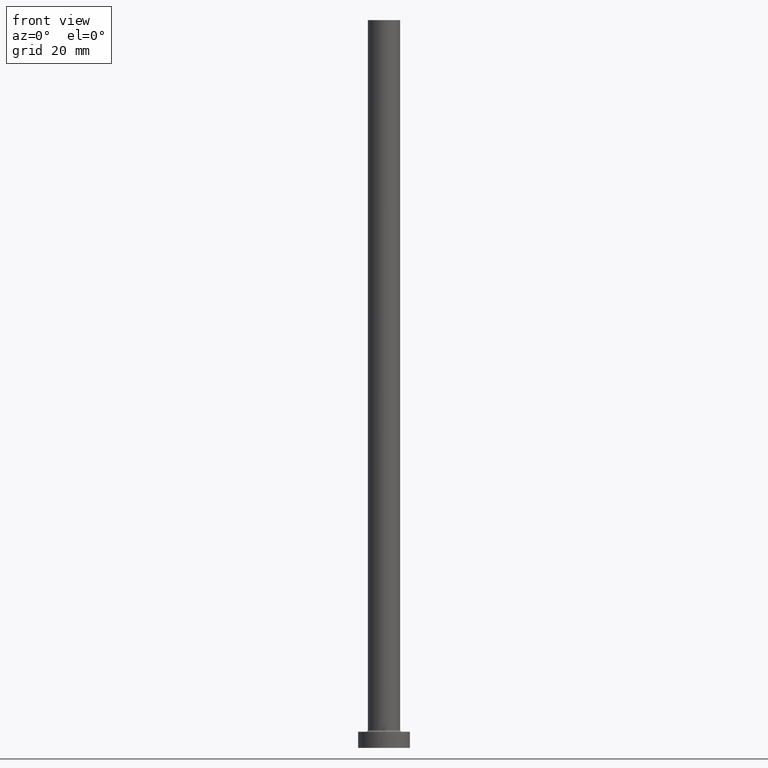
[diagram: clean part render]
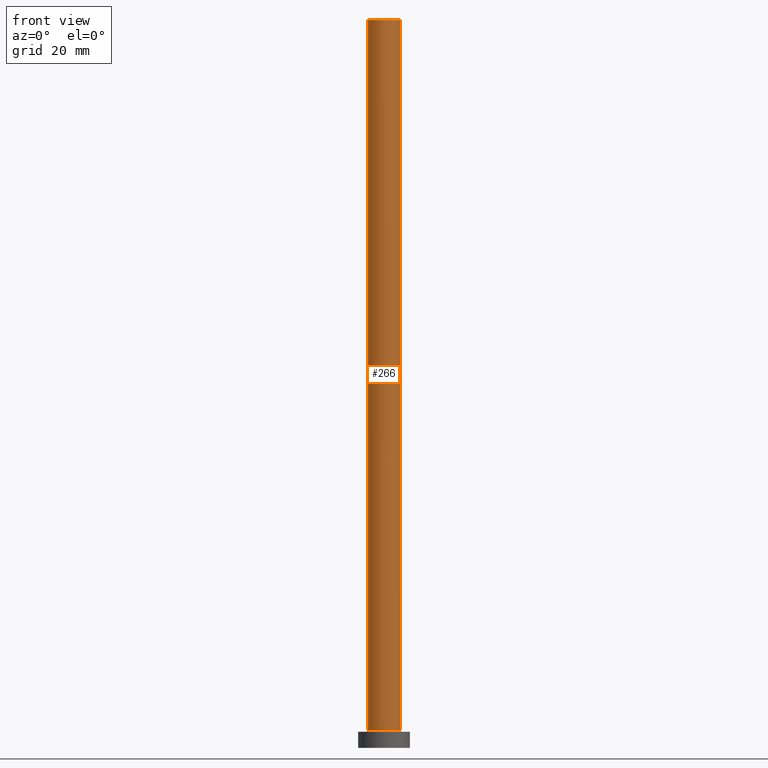
[diagram: same view with one face highlighted and labeled with its STEP entity id]
A machine part, front view. The second image highlights one B-rep face of the part: STEP entity #266.
In plain terms, the highlighted cylindrical surface (edge-blend (fillet) strip) has radius 5 mm, axis along (-0, -0, -1).
Its self-contained STEP definition (entity closure, byte-faithful):
#8 = DIRECTION ( 'NONE',  ( -0.000000000000000000, -0.000000000000000000, -1.000000000000000000 ) ) ;
#18 = EDGE_CURVE ( 'NONE', #355, #313, #265, .T. ) ;
#27 = DIRECTION ( 'NONE',  ( -0.000000000000000000, -0.000000000000000000, -1.000000000000000000 ) ) ;
#41 = ORIENTED_EDGE ( 'NONE', *, *, #53, .T. ) ;
#46 = DIRECTION ( 'NONE',  ( -0.000000000000000000, -0.000000000000000000, -1.000000000000000000 ) ) ;
#52 = LINE ( 'NONE', #186, #103 ) ;
#53 = EDGE_CURVE ( 'NONE', #313, #67, #448, .T. ) ;
#67 = VERTEX_POINT ( 'NONE', #363 ) ;
#71 = CARTESIAN_POINT ( 'NONE',  ( -5.000000000000000000, 0.000000000000000000, 5.500000000000005329 ) ) ;
#78 = CARTESIAN_POINT ( 'NONE',  ( -5.000000000000000000, 0.000000000000000000, 225.0000000000000000 ) ) ;
#88 = CARTESIAN_POINT ( 'NONE',  ( 0.000000000000000000, 0.000000000000000000, 225.0000000000000000 ) ) ;
#92 = EDGE_CURVE ( 'NONE', #419, #67, #52, .T. ) ;
#103 = VECTOR ( 'NONE', #46, 1000.000000000000000 ) ;
#140 = AXIS2_PLACEMENT_3D ( 'NONE', #168, #27, #450 ) ;
#168 = CARTESIAN_POINT ( 'NONE',  ( 0.000000000000000000, 0.000000000000000000, 225.0000000000000000 ) ) ;
#172 = CIRCLE ( 'NONE', #238, 5.000000000000000000 ) ;
#186 = CARTESIAN_POINT ( 'NONE',  ( 5.000000000000000000, 6.123233995736766282E-16, 225.0000000000000000 ) ) ;
#200 = ORIENTED_EDGE ( 'NONE', *, *, #18, .T. ) ;
#232 = DIRECTION ( 'NONE',  ( 0.000000000000000000, 0.000000000000000000, 1.000000000000000000 ) ) ;
#234 = FACE_OUTER_BOUND ( 'NONE', #352, .T. ) ;
#238 = AXIS2_PLACEMENT_3D ( 'NONE', #88, #232, #308 ) ;
#250 = CARTESIAN_POINT ( 'NONE',  ( -5.000000000000000000, 0.000000000000000000, 225.0000000000000000 ) ) ;
#265 = LINE ( 'NONE', #78, #334 ) ;
#266 = ADVANCED_FACE ( 'NONE', ( #234 ), #376, .T. ) ;
#272 = EDGE_CURVE ( 'NONE', #355, #419, #172, .T. ) ;
#282 = CARTESIAN_POINT ( 'NONE',  ( 5.000000000000000000, 6.123233995736766282E-16, 225.0000000000000000 ) ) ;
#301 = AXIS2_PLACEMENT_3D ( 'NONE', #332, #365, #339 ) ;
#308 = DIRECTION ( 'NONE',  ( 1.000000000000000000, 0.000000000000000000, 0.000000000000000000 ) ) ;
#313 = VERTEX_POINT ( 'NONE', #71 ) ;
#332 = CARTESIAN_POINT ( 'NONE',  ( 0.000000000000000000, 0.000000000000000000, 5.500000000000005329 ) ) ;
#334 = VECTOR ( 'NONE', #8, 1000.000000000000000 ) ;
#339 = DIRECTION ( 'NONE',  ( 1.000000000000000000, 0.000000000000000000, 0.000000000000000000 ) ) ;
#352 = EDGE_LOOP ( 'NONE', ( #394, #457, #200, #41 ) ) ;
#355 = VERTEX_POINT ( 'NONE', #250 ) ;
#363 = CARTESIAN_POINT ( 'NONE',  ( 5.000000000000000000, 6.123233995736766282E-16, 5.500000000000005329 ) ) ;
#365 = DIRECTION ( 'NONE',  ( 0.000000000000000000, 0.000000000000000000, 1.000000000000000000 ) ) ;
#376 = CYLINDRICAL_SURFACE ( 'NONE', #140, 5.000000000000000000 ) ;
#394 = ORIENTED_EDGE ( 'NONE', *, *, #92, .F. ) ;
#419 = VERTEX_POINT ( 'NONE', #282 ) ;
#448 = CIRCLE ( 'NONE', #301, 5.000000000000000000 ) ;
#450 = DIRECTION ( 'NONE',  ( -1.000000000000000000, 0.000000000000000000, 0.000000000000000000 ) ) ;
#457 = ORIENTED_EDGE ( 'NONE', *, *, #272, .F. ) ;